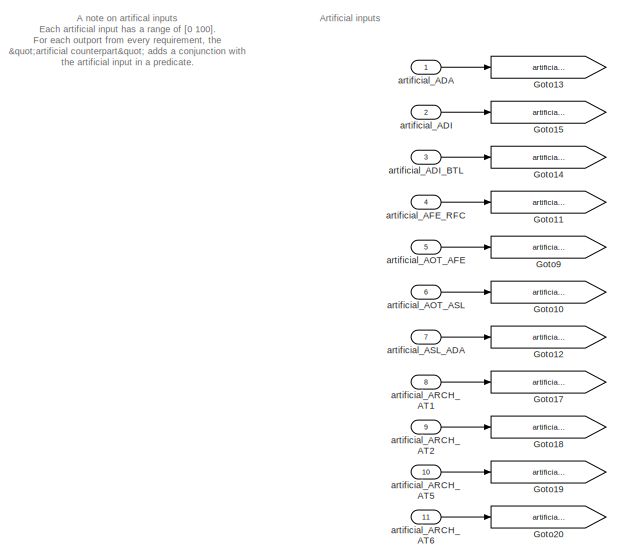
[diagram: root canvas - part 1/2, top left region]
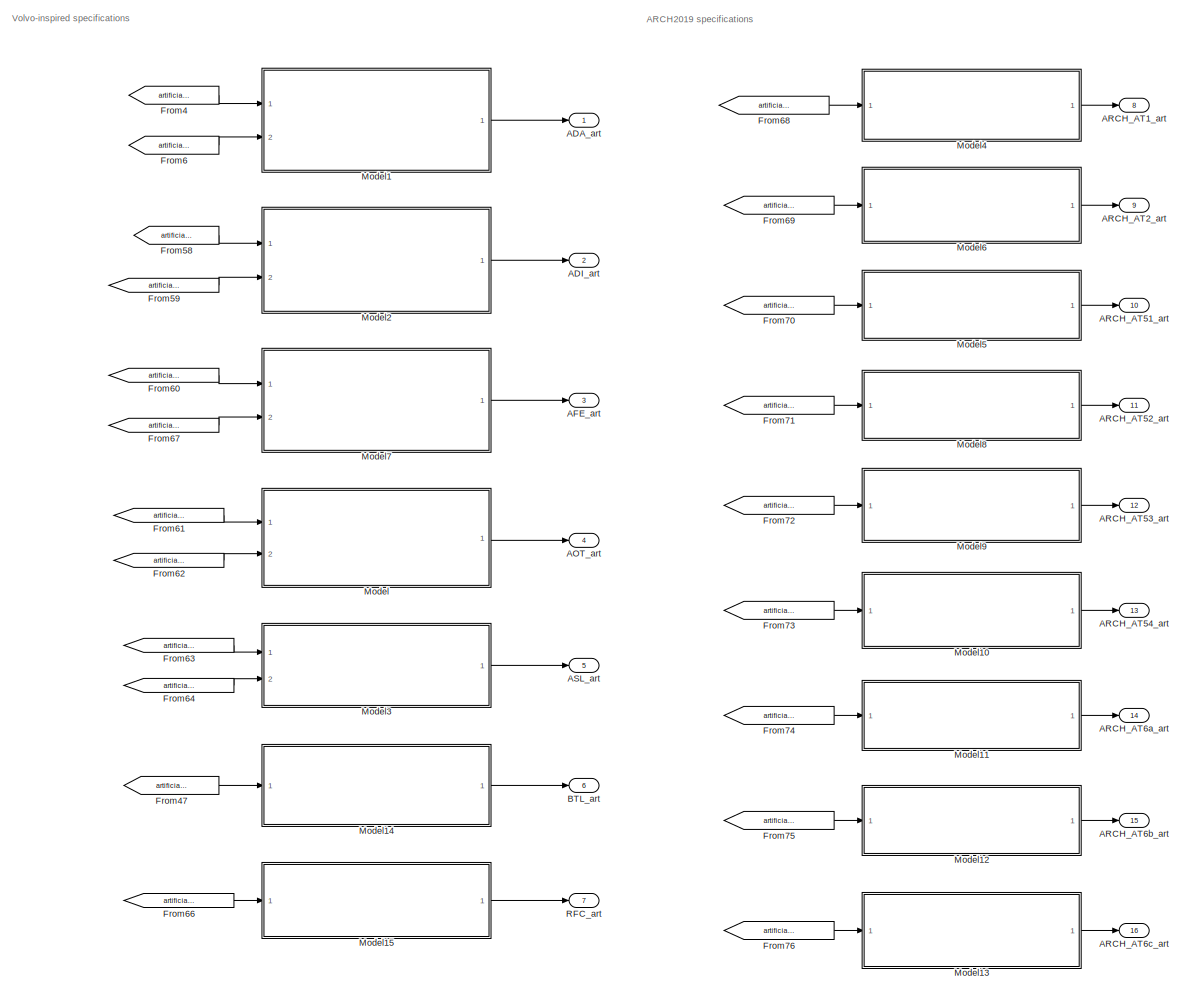
[diagram: root canvas - part 2/2, right side, full height]
MODEL slx_ff309928c7f0
KIND model
CONFIG AbsTol = auto
CONFIG EnableMultiTasking = off
CONFIG FixedStep = fixedStepSize
CONFIG MaxStep = auto
CONFIG MinStep = auto
CONFIG RelTol = 1e-3
CONFIG SampleTimeConstraint = Unconstrained
CONFIG Solver = FixedStepAuto
CONFIG SolverName = FixedStepAuto
CONFIG StartTime = 0.0
CONFIG StopTime = 10.0
BLOCK [Outport] ADA_art
  IconDisplay = Port number
  VectorParamsAs1DForOutWhenUnconnected = off
BLOCK [Outport] ADI_art
  IconDisplay = Port number
  Port = 2
  VectorParamsAs1DForOutWhenUnconnected = off
BLOCK [Outport] AFE_art
  IconDisplay = Port number
  Port = 3
  VectorParamsAs1DForOutWhenUnconnected = off
BLOCK [Outport] AOT_art
  IconDisplay = Port number
  Port = 4
  VectorParamsAs1DForOutWhenUnconnected = off
BLOCK [Outport] ARCH_AT1_art
  IconDisplay = Port number
  Port = 8
  VectorParamsAs1DForOutWhenUnconnected = off
BLOCK [Outport] ARCH_AT2_art
  IconDisplay = Port number
  Port = 9
  VectorParamsAs1DForOutWhenUnconnected = off
BLOCK [Outport] ARCH_AT51_art
  IconDisplay = Port number
  Port = 10
  VectorParamsAs1DForOutWhenUnconnected = off
BLOCK [Outport] ARCH_AT52_art
  IconDisplay = Port number
  Port = 11
  VectorParamsAs1DForOutWhenUnconnected = off
BLOCK [Outport] ARCH_AT53_art
  IconDisplay = Port number
  Port = 12
  VectorParamsAs1DForOutWhenUnconnected = off
BLOCK [Outport] ARCH_AT54_art
  IconDisplay = Port number
  Port = 13
  VectorParamsAs1DForOutWhenUnconnected = off
BLOCK [Outport] ARCH_AT6a_art
  IconDisplay = Port number
  Port = 14
  VectorParamsAs1DForOutWhenUnconnected = off
BLOCK [Outport] ARCH_AT6b_art
  IconDisplay = Port number
  Port = 15
  VectorParamsAs1DForOutWhenUnconnected = off
BLOCK [Outport] ARCH_AT6c_art
  IconDisplay = Port number
  Port = 16
  VectorParamsAs1DForOutWhenUnconnected = off
BLOCK [Outport] ASL_art
  IconDisplay = Port number
  Port = 5
  VectorParamsAs1DForOutWhenUnconnected = off
BLOCK [Outport] BTL_art
  IconDisplay = Port number
  Port = 6
  VectorParamsAs1DForOutWhenUnconnected = off
BLOCK [From] From4
  GotoTag = artificial_ADA
BLOCK [From] From47
  GotoTag = artificial_ADI_BTL
BLOCK [From] From58
  GotoTag = artificial_ADI
BLOCK [From] From59
  GotoTag = artificial_ADI_BTL
BLOCK [From] From6
  GotoTag = artificial_ASL_ADA
BLOCK [From] From60
  GotoTag = artificial_AFE_RFC
BLOCK [From] From61
  GotoTag = artificial_AOT_AFE
BLOCK [From] From62
  GotoTag = artificial_AOT_ASL
BLOCK [From] From63
  GotoTag = artificial_AOT_ASL
BLOCK [From] From64
  GotoTag = artificial_ASL_ADA
BLOCK [From] From66
  GotoTag = artificial_AFE_RFC
BLOCK [From] From67
  GotoTag = artificial_AOT_AFE
BLOCK [From] From68
  GotoTag = artificial_ARCH_AT1
BLOCK [From] From69
  GotoTag = artificial_ARCH_AT2
BLOCK [From] From70
  GotoTag = artificial_ARCH_AT5
BLOCK [From] From71
  GotoTag = artificial_ARCH_AT5
BLOCK [From] From72
  GotoTag = artificial_ARCH_AT5
BLOCK [From] From73
  GotoTag = artificial_ARCH_AT5
BLOCK [From] From74
  GotoTag = artificial_ARCH_AT6
BLOCK [From] From75
  GotoTag = artificial_ARCH_AT6
BLOCK [From] From76
  GotoTag = artificial_ARCH_AT6
BLOCK [Goto] Goto10
  GotoTag = artificial_AOT_ASL
BLOCK [Goto] Goto11
  GotoTag = artificial_AFE_RFC
BLOCK [Goto] Goto12
  GotoTag = artificial_ASL_ADA
BLOCK [Goto] Goto13
  GotoTag = artificial_ADA
BLOCK [Goto] Goto14
  GotoTag = artificial_ADI_BTL
BLOCK [Goto] Goto15
  GotoTag = artificial_ADI
BLOCK [Goto] Goto17
  GotoTag = artificial_ARCH_AT1
BLOCK [Goto] Goto18
  GotoTag = artificial_ARCH_AT2
BLOCK [Goto] Goto19
  GotoTag = artificial_ARCH_AT5
BLOCK [Goto] Goto20
  GotoTag = artificial_ARCH_AT6
BLOCK [Goto] Goto9
  GotoTag = artificial_AOT_AFE
BLOCK [ModelReference] Model
  ModelNameDialog = AOT_art.slx
  ModelReferenceVersion = 1.552
  Ports = [2, 1]
BLOCK [ModelReference] Model1
  ModelNameDialog = ADA_art.slx
  ModelReferenceVersion = 1.693
  Ports = [2, 1]
BLOCK [ModelReference] Model10
  ModelNameDialog = ARCH_AT54_art.slx
  ModelReferenceVersion = 1.509
  Ports = [1, 1]
BLOCK [ModelReference] Model11
  ModelNameDialog = ARCH_AT6a_art.slx
  ModelReferenceVersion = 1.517
  Ports = [1, 1]
BLOCK [ModelReference] Model12
  ModelNameDialog = ARCH_AT6b_art.slx
  ModelReferenceVersion = 1.518
  Ports = [1, 1]
BLOCK [ModelReference] Model13
  ModelNameDialog = ARCH_AT6c_art.slx
  ModelReferenceVersion = 1.515
  Ports = [1, 1]
BLOCK [ModelReference] Model14
  ModelNameDialog = BTL_art.slx
  ModelReferenceVersion = 1.2809
  Ports = [1, 1]
BLOCK [ModelReference] Model15
  ModelNameDialog = RFC_art.slx
  ModelReferenceVersion = 1.2728
  Ports = [1, 1]
BLOCK [ModelReference] Model2
  ModelNameDialog = ADI_art.slx
  ModelReferenceVersion = 1.418
  Ports = [2, 1]
BLOCK [ModelReference] Model3
  ModelNameDialog = ASL_art.slx
  ModelReferenceVersion = 1.542
  Ports = [2, 1]
BLOCK [ModelReference] Model4
  ModelNameDialog = ARCH_AT1_art.slx
  ModelReferenceVersion = 1.449
  Ports = [1, 1]
BLOCK [ModelReference] Model5
  ModelNameDialog = ARCH_AT51_art.slx
  ModelReferenceVersion = 1.509
  Ports = [1, 1]
BLOCK [ModelReference] Model6
  ModelNameDialog = ARCH_AT2_art.slx
  ModelReferenceVersion = 1.450
  Ports = [1, 1]
BLOCK [ModelReference] Model7
  ModelNameDialog = AFE_art.slx
  ModelReferenceVersion = 1.538
  Ports = [2, 1]
BLOCK [ModelReference] Model8
  ModelNameDialog = ARCH_AT52_art.slx
  ModelReferenceVersion = 1.511
  Ports = [1, 1]
BLOCK [ModelReference] Model9
  ModelNameDialog = ARCH_AT53_art.slx
  ModelReferenceVersion = 1.520
  Ports = [1, 1]
BLOCK [Outport] RFC_art
  IconDisplay = Port number
  Port = 7
  VectorParamsAs1DForOutWhenUnconnected = off
BLOCK [Inport] artificial_ADA
  IconDisplay = Port number
BLOCK [Inport] artificial_ADI
  IconDisplay = Port number
  Port = 2
BLOCK [Inport] artificial_ADI_BTL
  IconDisplay = Port number
  Port = 3
BLOCK [Inport] artificial_AFE_RFC
  IconDisplay = Port number
  Port = 4
BLOCK [Inport] artificial_AOT_AFE
  IconDisplay = Port number
  Port = 5
BLOCK [Inport] artificial_AOT_ASL
  IconDisplay = Port number
  Port = 6
BLOCK [Inport] artificial_ARCH_AT1
  IconDisplay = Port number
  Port = 8
BLOCK [Inport] artificial_ARCH_AT2
  IconDisplay = Port number
  Port = 9
BLOCK [Inport] artificial_ARCH_AT5
  IconDisplay = Port number
  Port = 10
BLOCK [Inport] artificial_ARCH_AT6
  IconDisplay = Port number
  Port = 11
BLOCK [Inport] artificial_ASL_ADA
  IconDisplay = Port number
  Port = 7
ANNOTATION (root): A note on artifical inputs Each artificial input has a range of [0 100]. For each outport from every requirement, the "artificial counterpart" adds a conjunction with the artificial input in a predicate.
ANNOTATION (root): ARCH2019 specifications
ANNOTATION (root): Artificial inputs
ANNOTATION (root): Volvo-inspired specifications
LINE From47:1 -> Model14:1
LINE From4:1 -> Model1:1
LINE From58:1 -> Model2:1
LINE From59:1 -> Model2:2
LINE From60:1 -> Model7:1
LINE From61:1 -> Model:1
LINE From62:1 -> Model:2
LINE From63:1 -> Model3:1
LINE From64:1 -> Model3:2
LINE From66:1 -> Model15:1
LINE From67:1 -> Model7:2
LINE From68:1 -> Model4:1
LINE From69:1 -> Model6:1
LINE From6:1 -> Model1:2
LINE From70:1 -> Model5:1
LINE From71:1 -> Model8:1
LINE From72:1 -> Model9:1
LINE From73:1 -> Model10:1
LINE From74:1 -> Model11:1
LINE From75:1 -> Model12:1
LINE From76:1 -> Model13:1
LINE Model10:1 -> ARCH_AT54_art:1
LINE Model11:1 -> ARCH_AT6a_art:1
LINE Model12:1 -> ARCH_AT6b_art:1
LINE Model13:1 -> ARCH_AT6c_art:1
LINE Model14:1 -> BTL_art:1
LINE Model15:1 -> RFC_art:1
LINE Model1:1 -> ADA_art:1
LINE Model2:1 -> ADI_art:1
LINE Model3:1 -> ASL_art:1
LINE Model4:1 -> ARCH_AT1_art:1
LINE Model5:1 -> ARCH_AT51_art:1
LINE Model6:1 -> ARCH_AT2_art:1
LINE Model7:1 -> AFE_art:1
LINE Model8:1 -> ARCH_AT52_art:1
LINE Model9:1 -> ARCH_AT53_art:1
LINE Model:1 -> AOT_art:1
LINE artificial_ADA:1 -> Goto13:1
LINE artificial_ADI:1 -> Goto15:1
LINE artificial_ADI_BTL:1 -> Goto14:1
LINE artificial_AFE_RFC:1 -> Goto11:1
LINE artificial_AOT_AFE:1 -> Goto9:1
LINE artificial_AOT_ASL:1 -> Goto10:1
LINE artificial_ARCH_AT1:1 -> Goto17:1
LINE artificial_ARCH_AT2:1 -> Goto18:1
LINE artificial_ARCH_AT5:1 -> Goto19:1
LINE artificial_ARCH_AT6:1 -> Goto20:1
LINE artificial_ASL_ADA:1 -> Goto12:1
